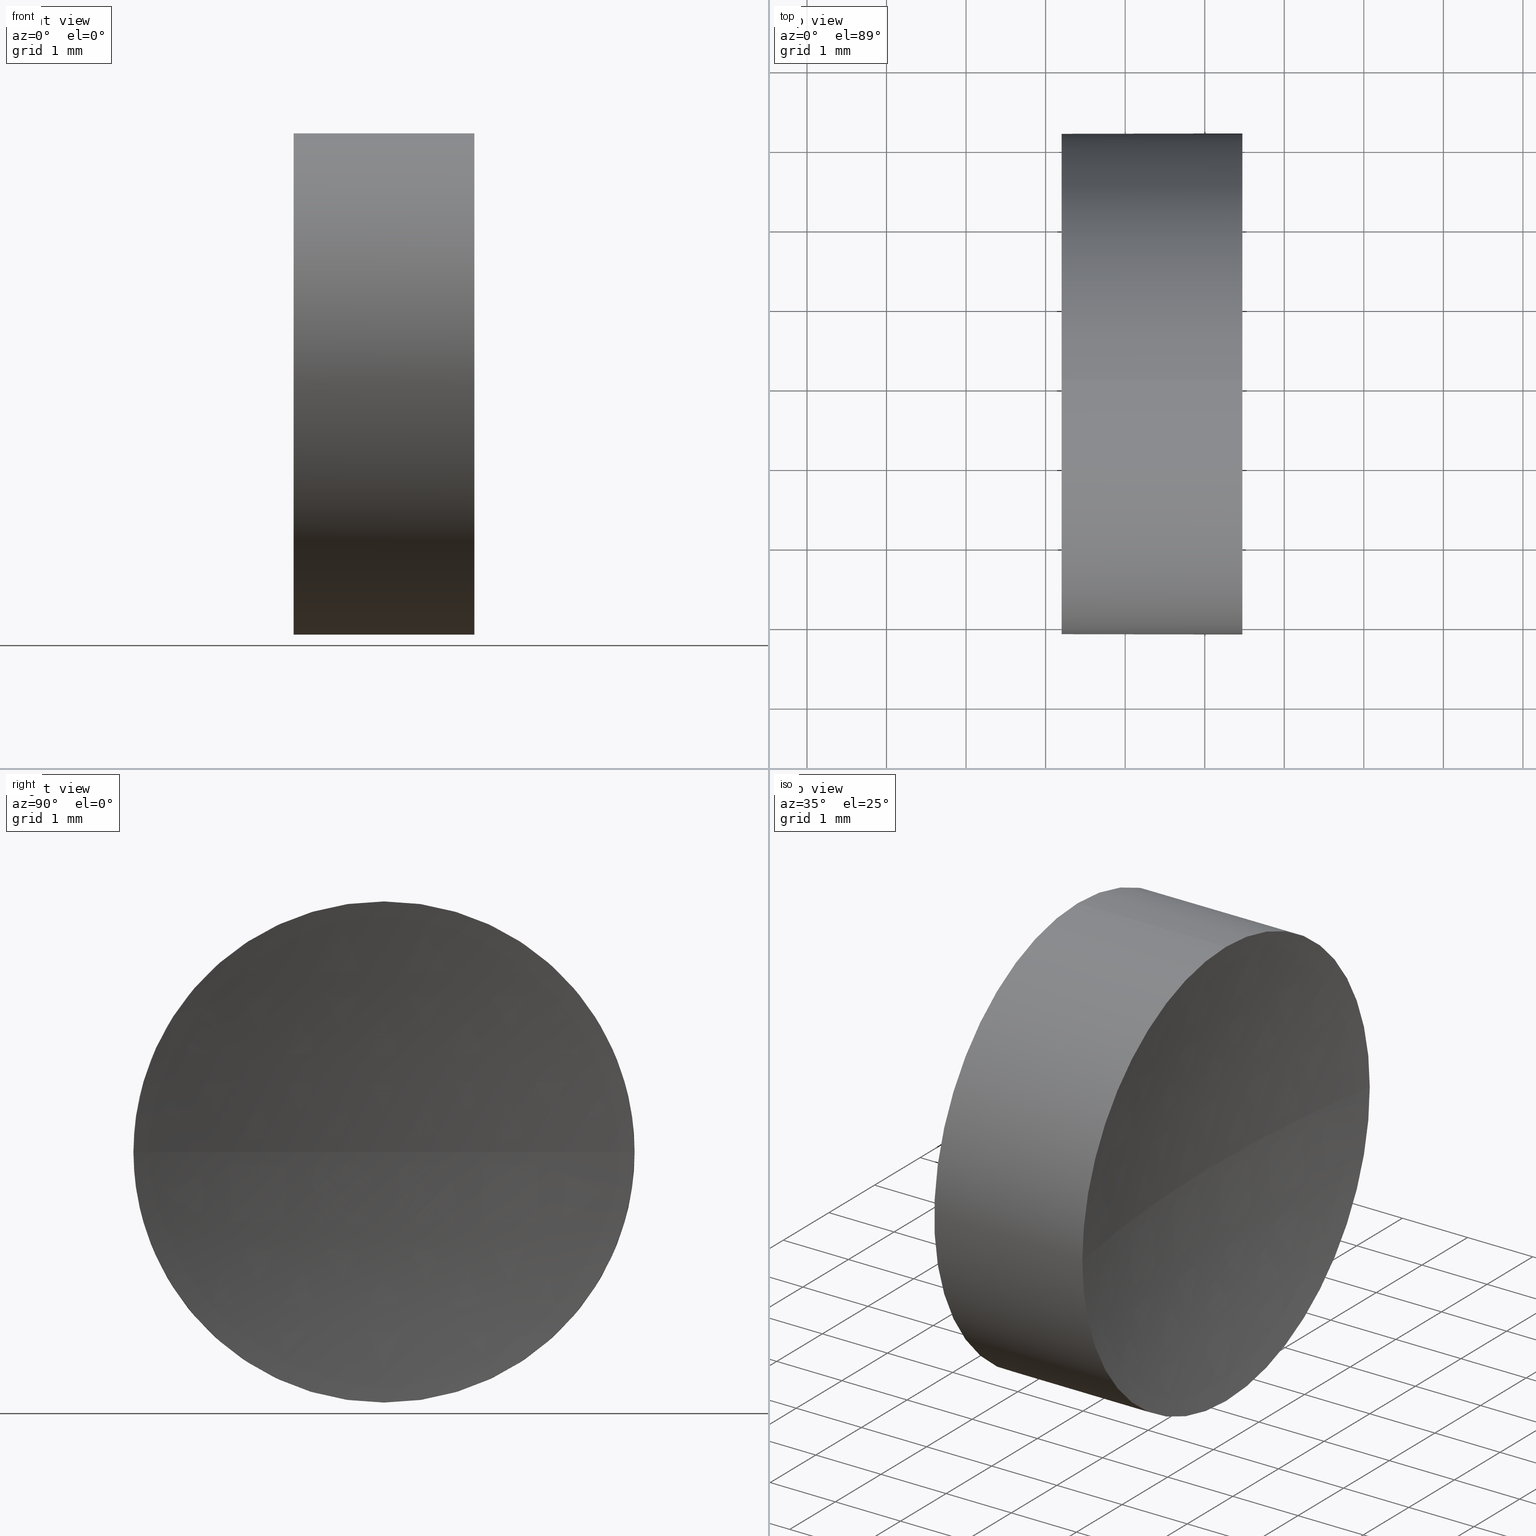
[diagram: canonical four-view strip — front | top / right | iso, engineering-drawing reading convention]
A machine part, canonical four-view strip (front | top / right | iso — engineering-drawing reading convention). The complete STEP part file that produces these views, byte-faithful:
ISO-10303-21;
HEADER;
FILE_DESCRIPTION (( 'STEP AP214' ),
    '1' );
FILE_NAME ('120249.STEP',
    '2019-06-24T06:12:43',
    ( '' ),
    ( '' ),
    'SwSTEP 2.0',
    'SolidWorks 2016',
    '' );
FILE_SCHEMA (( 'AUTOMOTIVE_DESIGN' ));
ENDSEC;

DATA;
#1 = CIRCLE ( 'NONE', #78, 3.150000000000005200 ) ;
#2 = CARTESIAN_POINT ( 'NONE',  ( 21.15647192244426100, 13.03112609140304000, 3.150000000000001700 ) ) ;
#3 = PRODUCT_DEFINITION_SHAPE ( 'NONE', 'NONE',  #104 ) ;
#4 = CARTESIAN_POINT ( 'NONE',  ( 24.47341578959445800, 13.03112609140304000, 0.0000000000000000000 ) ) ;
#5 = SURFACE_STYLE_FILL_AREA ( #72 ) ;
#6 = EDGE_CURVE ( 'NONE', #52, #143, #66, .T. ) ;
#7 = CARTESIAN_POINT ( 'NONE',  ( 22.20087548928661300, 13.03112609140304000, 3.149999999999998100 ) ) ;
#8 = ORIENTED_EDGE ( 'NONE', *, *, #92, .F. ) ;
#9 =( GEOMETRIC_REPRESENTATION_CONTEXT ( 3 ) GLOBAL_UNCERTAINTY_ASSIGNED_CONTEXT ( ( #83 ) ) GLOBAL_UNIT_ASSIGNED_CONTEXT ( ( #65, #84, #99 ) ) REPRESENTATION_CONTEXT ( 'NONE', 'WORKASPACE' ) );
#10 = CARTESIAN_POINT ( 'NONE',  ( 21.15647192244426100, 13.03112609140304000, 0.0000000000000000000 ) ) ;
#11 = ORIENTED_EDGE ( 'NONE', *, *, #151, .F. ) ;
#12 = CIRCLE ( 'NONE', #109, 3.150000000000005200 ) ;
#13 = DIRECTION ( 'NONE',  ( 1.000000000000000000, 0.0000000000000000000, 0.0000000000000000000 ) ) ;
#14 = ORIENTED_EDGE ( 'NONE', *, *, #74, .F. ) ;
#15 = DIRECTION ( 'NONE',  ( 0.0000000000000000000, -1.000000000000000000, 0.0000000000000000000 ) ) ;
#16 = ORIENTED_EDGE ( 'NONE', *, *, #6, .T. ) ;
#17 = PRODUCT_DEFINITION_CONTEXT ( 'detailed design', #54, 'design' ) ;
#18 = AXIS2_PLACEMENT_3D ( 'NONE', #51, #63, #118 ) ;
#19 = DIRECTION ( 'NONE',  ( 0.0000000000000000000, 0.0000000000000000000, 1.000000000000000000 ) ) ;
#20 = AXIS2_PLACEMENT_3D ( 'NONE', #169, #69, #13 ) ;
#21 = DIRECTION ( 'NONE',  ( -1.000000000000000000, -0.0000000000000000000, -0.0000000000000000000 ) ) ;
#22 = PRODUCT_RELATED_PRODUCT_CATEGORY ( 'part', '', ( #79 ) ) ;
#23 = CARTESIAN_POINT ( 'NONE',  ( 24.47341578959445800, 13.03112609140304000, 3.150000000000005200 ) ) ;
#24 = CARTESIAN_POINT ( 'NONE',  ( 24.47341578959445800, 13.03112609140304000, 0.0000000000000000000 ) ) ;
#25 = VERTEX_POINT ( 'NONE', #59 ) ;
#26 = CYLINDRICAL_SURFACE ( 'NONE', #166, 3.150000000000001700 ) ;
#27 = VERTEX_POINT ( 'NONE', #98 ) ;
#28 =( NAMED_UNIT ( * ) PLANE_ANGLE_UNIT ( ) SI_UNIT ( $, .RADIAN. ) );
#29 = STYLED_ITEM ( 'NONE', ( #89 ), #152 ) ;
#30 = SPHERICAL_SURFACE ( 'NONE', #46, 18.34000000000001100 ) ;
#31 = EDGE_CURVE ( 'NONE', #42, #143, #75, .T. ) ;
#32 = COLOUR_RGB ( '',1.000000000000000000, 1.000000000000000000, 1.000000000000000000 ) ;
#33 = ADVANCED_BREP_SHAPE_REPRESENTATION ( '120249', ( #152, #20 ), #55 ) ;
#34 = EDGE_CURVE ( 'NONE', #27, #25, #144, .T. ) ;
#35 = DIRECTION ( 'NONE',  ( -1.000000000000000000, -0.0000000000000000000, -0.0000000000000000000 ) ) ;
#36 = VERTEX_POINT ( 'NONE', #113 ) ;
#37 = CARTESIAN_POINT ( 'NONE',  ( 24.47341578959445800, 13.03112609140304000, 0.0000000000000000000 ) ) ;
#38 = VECTOR ( 'NONE', #180, 1000.000000000000000 ) ;
#39 = CARTESIAN_POINT ( 'NONE',  ( 22.20087548928661300, 13.03112609140304000, 0.0000000000000000000 ) ) ;
#40 = MECHANICAL_DESIGN_GEOMETRIC_PRESENTATION_REPRESENTATION (  '', ( #29 ), #9 ) ;
#41 = DIRECTION ( 'NONE',  ( -1.000000000000000000, 0.0000000000000000000, 0.0000000000000000000 ) ) ;
#42 = VERTEX_POINT ( 'NONE', #23 ) ;
#43 =( LENGTH_UNIT ( ) NAMED_UNIT ( * ) SI_UNIT ( .MILLI., .METRE. ) );
#44 = AXIS2_PLACEMENT_3D ( 'NONE', #165, #141, #183 ) ;
#45 = ORIENTED_EDGE ( 'NONE', *, *, #80, .T. ) ;
#46 = AXIS2_PLACEMENT_3D ( 'NONE', #107, #186, #15 ) ;
#47 = UNCERTAINTY_MEASURE_WITH_UNIT (LENGTH_MEASURE( 1.000000000000000100E-005 ), #43, 'distance_accuracy_value', 'NONE');
#48 = ORIENTED_EDGE ( 'NONE', *, *, #68, .T. ) ;
#49 = ORIENTED_EDGE ( 'NONE', *, *, #151, .T. ) ;
#50 = SURFACE_STYLE_USAGE ( .BOTH. , #85 ) ;
#51 = CARTESIAN_POINT ( 'NONE',  ( 24.47341578959445800, 13.03112609140304000, 0.0000000000000000000 ) ) ;
#52 = VERTEX_POINT ( 'NONE', #61 ) ;
#53 =( NAMED_UNIT ( * ) PLANE_ANGLE_UNIT ( ) SI_UNIT ( $, .RADIAN. ) );
#54 = APPLICATION_CONTEXT ( 'automotive_design' ) ;
#55 =( GEOMETRIC_REPRESENTATION_CONTEXT ( 3 ) GLOBAL_UNCERTAINTY_ASSIGNED_CONTEXT ( ( #64 ) ) GLOBAL_UNIT_ASSIGNED_CONTEXT ( ( #170, #53, #105 ) ) REPRESENTATION_CONTEXT ( 'NONE', 'WORKASPACE' ) );
#56 = ORIENTED_EDGE ( 'NONE', *, *, #31, .T. ) ;
#57 = MECHANICAL_DESIGN_GEOMETRIC_PRESENTATION_REPRESENTATION (  '', ( #120 ), #133 ) ;
#58 = CARTESIAN_POINT ( 'NONE',  ( 22.20087548928661300, 13.03112609140304000, 0.0000000000000000000 ) ) ;
#59 = CARTESIAN_POINT ( 'NONE',  ( 24.20087548928660900, 13.03112609140305800, 0.0000000000000000000 ) ) ;
#60 = ORIENTED_EDGE ( 'NONE', *, *, #80, .F. ) ;
#61 = CARTESIAN_POINT ( 'NONE',  ( 22.20087548928661300, 13.03112609140304000, -3.149999999999998100 ) ) ;
#62 = CIRCLE ( 'NONE', #91, 3.150000000000005200 ) ;
#63 = DIRECTION ( 'NONE',  ( -1.000000000000000000, -0.0000000000000000000, -0.0000000000000000000 ) ) ;
#64 = UNCERTAINTY_MEASURE_WITH_UNIT (LENGTH_MEASURE( 1.000000000000000100E-005 ), #170, 'distance_accuracy_value', 'NONE');
#65 =( LENGTH_UNIT ( ) NAMED_UNIT ( * ) SI_UNIT ( .MILLI., .METRE. ) );
#66 = CIRCLE ( 'NONE', #121, 3.149999999999998100 ) ;
#67 = DIRECTION ( 'NONE',  ( 1.000000000000000000, 0.0000000000000000000, 0.0000000000000000000 ) ) ;
#68 = EDGE_CURVE ( 'NONE', #27, #125, #1, .T. ) ;
#69 = DIRECTION ( 'NONE',  ( 0.0000000000000000000, 0.0000000000000000000, 1.000000000000000000 ) ) ;
#70 = EDGE_CURVE ( 'NONE', #125, #52, #112, .T. ) ;
#71 = APPLICATION_PROTOCOL_DEFINITION ( 'draft international standard', 'automotive_design', 1998, #54 ) ;
#72 = FILL_AREA_STYLE ('',( #86 ) ) ;
#73 = PRESENTATION_STYLE_ASSIGNMENT (( #157 ) ) ;
#74 = EDGE_CURVE ( 'NONE', #143, #52, #163, .T. ) ;
#75 = LINE ( 'NONE', #2, #38 ) ;
#76 = DIRECTION ( 'NONE',  ( -1.000000000000000000, -0.0000000000000000000, -0.0000000000000000000 ) ) ;
#77 = DIRECTION ( 'NONE',  ( 0.0000000000000000000, 0.0000000000000000000, 1.000000000000000000 ) ) ;
#78 = AXIS2_PLACEMENT_3D ( 'NONE', #4, #137, #19 ) ;
#79 = PRODUCT ( '120249', '120249', '', ( #154 ) ) ;
#80 = EDGE_CURVE ( 'NONE', #36, #42, #12, .T. ) ;
#81 = DIRECTION ( 'NONE',  ( 0.0000000000000000000, 0.0000000000000000000, -1.000000000000000000 ) ) ;
#82 = EDGE_LOOP ( 'NONE', ( #158, #87, #45, #56, #184 ) ) ;
#83 = UNCERTAINTY_MEASURE_WITH_UNIT (LENGTH_MEASURE( 1.000000000000000100E-005 ), #65, 'distance_accuracy_value', 'NONE');
#84 =( NAMED_UNIT ( * ) PLANE_ANGLE_UNIT ( ) SI_UNIT ( $, .RADIAN. ) );
#85 = SURFACE_SIDE_STYLE ('',( #153 ) ) ;
#86 = FILL_AREA_STYLE_COLOUR ( '', #32 ) ;
#87 = ORIENTED_EDGE ( 'NONE', *, *, #92, .T. ) ;
#88 = SURFACE_SIDE_STYLE ('',( #5 ) ) ;
#89 = PRESENTATION_STYLE_ASSIGNMENT (( #50 ) ) ;
#90 = PRESENTATION_LAYER_ASSIGNMENT (  '', '', ( #29 ) ) ;
#91 = AXIS2_PLACEMENT_3D ( 'NONE', #24, #129, #128 ) ;
#92 = EDGE_CURVE ( 'NONE', #125, #36, #171, .T. ) ;
#93 = CARTESIAN_POINT ( 'NONE',  ( 21.15647192244426100, 13.03112609140304000, -3.150000000000001700 ) ) ;
#94 = COLOUR_RGB ( '',1.000000000000000000, 1.000000000000000000, 1.000000000000000000 ) ;
#95 = ADVANCED_FACE ( 'NONE', ( #139 ), #177, .F. ) ;
#96 = CARTESIAN_POINT ( 'NONE',  ( 22.20087548928661300, 13.03112609140304000, 0.0000000000000000000 ) ) ;
#97 = DIRECTION ( 'NONE',  ( -1.000000000000000000, -0.0000000000000000000, -0.0000000000000000000 ) ) ;
#98 = CARTESIAN_POINT ( 'NONE',  ( 24.47341578959445800, 16.18112609140305500, 3.857637417314159200E-016 ) ) ;
#99 =( NAMED_UNIT ( * ) SI_UNIT ( $, .STERADIAN. ) SOLID_ANGLE_UNIT ( ) );
#100 = PRODUCT_DEFINITION_FORMATION_WITH_SPECIFIED_SOURCE ( '�κ�', '', #79, .NOT_KNOWN. ) ;
#101 = FACE_OUTER_BOUND ( 'NONE', #82, .T. ) ;
#102 =( NAMED_UNIT ( * ) SI_UNIT ( $, .STERADIAN. ) SOLID_ANGLE_UNIT ( ) );
#103 = CLOSED_SHELL ( 'NONE', ( #149, #181, #111, #159, #95 ) ) ;
#104 = PRODUCT_DEFINITION ( 'δ֪', '', #100, #17 ) ;
#105 =( NAMED_UNIT ( * ) SI_UNIT ( $, .STERADIAN. ) SOLID_ANGLE_UNIT ( ) );
#106 = CARTESIAN_POINT ( 'NONE',  ( 21.15647192244426100, 13.03112609140304000, 0.0000000000000000000 ) ) ;
#107 = CARTESIAN_POINT ( 'NONE',  ( 42.54087548928662000, 13.03112609140306000, 0.0000000000000000000 ) ) ;
#108 = ORIENTED_EDGE ( 'NONE', *, *, #34, .F. ) ;
#109 = AXIS2_PLACEMENT_3D ( 'NONE', #37, #21, #136 ) ;
#110 = CIRCLE ( 'NONE', #131, 18.34000000000001100 ) ;
#111 = ADVANCED_FACE ( 'NONE', ( #124 ), #147, .F. ) ;
#112 = LINE ( 'NONE', #93, #175 ) ;
#113 = CARTESIAN_POINT ( 'NONE',  ( 24.47341578959445800, 9.881126091403041700, 0.0000000000000000000 ) ) ;
#114 = AXIS2_PLACEMENT_3D ( 'NONE', #178, #174, #115 ) ;
#115 = DIRECTION ( 'NONE',  ( 0.0000000000000000000, -1.000000000000000000, -1.224646799147353200E-016 ) ) ;
#116 = DIRECTION ( 'NONE',  ( 0.0000000000000000000, 0.0000000000000000000, 1.000000000000000000 ) ) ;
#117 = CARTESIAN_POINT ( 'NONE',  ( 42.54087548928662000, 13.03112609140306000, 0.0000000000000000000 ) ) ;
#118 = DIRECTION ( 'NONE',  ( 0.0000000000000000000, 0.0000000000000000000, 1.000000000000000000 ) ) ;
#119 = APPLICATION_CONTEXT ( 'automotive_design' ) ;
#120 = STYLED_ITEM ( 'NONE', ( #73 ), #33 ) ;
#121 = AXIS2_PLACEMENT_3D ( 'NONE', #39, #76, #123 ) ;
#122 = EDGE_CURVE ( 'NONE', #36, #25, #110, .T. ) ;
#123 = DIRECTION ( 'NONE',  ( 0.0000000000000000000, 0.0000000000000000000, 1.000000000000000000 ) ) ;
#124 = FACE_OUTER_BOUND ( 'NONE', #162, .T. ) ;
#125 = VERTEX_POINT ( 'NONE', #150 ) ;
#126 = DIRECTION ( 'NONE',  ( 0.0000000000000000000, 0.0000000000000000000, -1.000000000000000000 ) ) ;
#127 = PRESENTATION_LAYER_ASSIGNMENT (  '', '', ( #120 ) ) ;
#128 = DIRECTION ( 'NONE',  ( 0.0000000000000000000, 0.0000000000000000000, 1.000000000000000000 ) ) ;
#129 = DIRECTION ( 'NONE',  ( -1.000000000000000000, -0.0000000000000000000, -0.0000000000000000000 ) ) ;
#130 = ORIENTED_EDGE ( 'NONE', *, *, #70, .T. ) ;
#131 = AXIS2_PLACEMENT_3D ( 'NONE', #117, #81, #41 ) ;
#132 = ORIENTED_EDGE ( 'NONE', *, *, #31, .F. ) ;
#133 =( GEOMETRIC_REPRESENTATION_CONTEXT ( 3 ) GLOBAL_UNCERTAINTY_ASSIGNED_CONTEXT ( ( #47 ) ) GLOBAL_UNIT_ASSIGNED_CONTEXT ( ( #43, #28, #102 ) ) REPRESENTATION_CONTEXT ( 'NONE', 'WORKASPACE' ) );
#134 = EDGE_LOOP ( 'NONE', ( #48, #130, #14, #132, #49 ) ) ;
#135 = ORIENTED_EDGE ( 'NONE', *, *, #74, .T. ) ;
#136 = DIRECTION ( 'NONE',  ( 0.0000000000000000000, 0.0000000000000000000, 1.000000000000000000 ) ) ;
#137 = DIRECTION ( 'NONE',  ( -1.000000000000000000, -0.0000000000000000000, -0.0000000000000000000 ) ) ;
#138 = FILL_AREA_STYLE ('',( #167 ) ) ;
#139 = FACE_OUTER_BOUND ( 'NONE', #164, .T. ) ;
#140 = AXIS2_PLACEMENT_3D ( 'NONE', #96, #67, #126 ) ;
#141 = DIRECTION ( 'NONE',  ( 0.0000000000000000000, 0.0000000000000000000, 1.000000000000000000 ) ) ;
#142 = ORIENTED_EDGE ( 'NONE', *, *, #122, .F. ) ;
#143 = VERTEX_POINT ( 'NONE', #7 ) ;
#144 = CIRCLE ( 'NONE', #114, 18.34000000000001100 ) ;
#145 = SHAPE_DEFINITION_REPRESENTATION ( #3, #33 ) ;
#146 = ORIENTED_EDGE ( 'NONE', *, *, #122, .T. ) ;
#147 = SPHERICAL_SURFACE ( 'NONE', #44, 18.34000000000001100 ) ;
#148 = EDGE_LOOP ( 'NONE', ( #179, #161, #142, #8 ) ) ;
#149 = ADVANCED_FACE ( 'NONE', ( #173 ), #26, .T. ) ;
#150 = CARTESIAN_POINT ( 'NONE',  ( 24.47341578959445800, 13.03112609140304000, -3.150000000000005200 ) ) ;
#151 = EDGE_CURVE ( 'NONE', #42, #27, #62, .T. ) ;
#152 = MANIFOLD_SOLID_BREP ( '��ת1', #103 ) ;
#153 = SURFACE_STYLE_FILL_AREA ( #138 ) ;
#154 = PRODUCT_CONTEXT ( 'NONE', #119, 'mechanical' ) ;
#155 = DIRECTION ( 'NONE',  ( 0.0000000000000000000, 0.0000000000000000000, 1.000000000000000000 ) ) ;
#156 = DIRECTION ( 'NONE',  ( -1.000000000000000000, -0.0000000000000000000, -0.0000000000000000000 ) ) ;
#157 = SURFACE_STYLE_USAGE ( .BOTH. , #88 ) ;
#158 = ORIENTED_EDGE ( 'NONE', *, *, #70, .F. ) ;
#159 = ADVANCED_FACE ( 'NONE', ( #101 ), #172, .T. ) ;
#160 = AXIS2_PLACEMENT_3D ( 'NONE', #58, #97, #77 ) ;
#161 = ORIENTED_EDGE ( 'NONE', *, *, #34, .T. ) ;
#162 = EDGE_LOOP ( 'NONE', ( #108, #11, #60, #146 ) ) ;
#163 = CIRCLE ( 'NONE', #160, 3.149999999999998100 ) ;
#164 = EDGE_LOOP ( 'NONE', ( #135, #16 ) ) ;
#165 = CARTESIAN_POINT ( 'NONE',  ( 42.54087548928662000, 13.03112609140306000, 0.0000000000000000000 ) ) ;
#166 = AXIS2_PLACEMENT_3D ( 'NONE', #10, #182, #116 ) ;
#167 = FILL_AREA_STYLE_COLOUR ( '', #94 ) ;
#168 = FACE_OUTER_BOUND ( 'NONE', #148, .T. ) ;
#169 = CARTESIAN_POINT ( 'NONE',  ( 0.0000000000000000000, 0.0000000000000000000, 0.0000000000000000000 ) ) ;
#170 =( LENGTH_UNIT ( ) NAMED_UNIT ( * ) SI_UNIT ( .MILLI., .METRE. ) );
#171 = CIRCLE ( 'NONE', #18, 3.150000000000005200 ) ;
#172 = CYLINDRICAL_SURFACE ( 'NONE', #176, 3.150000000000001700 ) ;
#173 = FACE_OUTER_BOUND ( 'NONE', #134, .T. ) ;
#174 = DIRECTION ( 'NONE',  ( 0.0000000000000000000, -1.224646799147353200E-016, 1.000000000000000000 ) ) ;
#175 = VECTOR ( 'NONE', #35, 1000.000000000000000 ) ;
#176 = AXIS2_PLACEMENT_3D ( 'NONE', #106, #156, #155 ) ;
#177 = PLANE ( 'NONE',  #140 ) ;
#178 = CARTESIAN_POINT ( 'NONE',  ( 42.54087548928662000, 13.03112609140306000, 0.0000000000000000000 ) ) ;
#179 = ORIENTED_EDGE ( 'NONE', *, *, #68, .F. ) ;
#180 = DIRECTION ( 'NONE',  ( -1.000000000000000000, -0.0000000000000000000, -0.0000000000000000000 ) ) ;
#181 = ADVANCED_FACE ( 'NONE', ( #168 ), #30, .F. ) ;
#182 = DIRECTION ( 'NONE',  ( -1.000000000000000000, -0.0000000000000000000, -0.0000000000000000000 ) ) ;
#183 = DIRECTION ( 'NONE',  ( 0.0000000000000000000, -1.000000000000000000, 0.0000000000000000000 ) ) ;
#184 = ORIENTED_EDGE ( 'NONE', *, *, #6, .F. ) ;
#185 = APPLICATION_PROTOCOL_DEFINITION ( 'draft international standard', 'automotive_design', 1998, #119 ) ;
#186 = DIRECTION ( 'NONE',  ( 0.0000000000000000000, 0.0000000000000000000, 1.000000000000000000 ) ) ;
ENDSEC;
END-ISO-10303-21;
